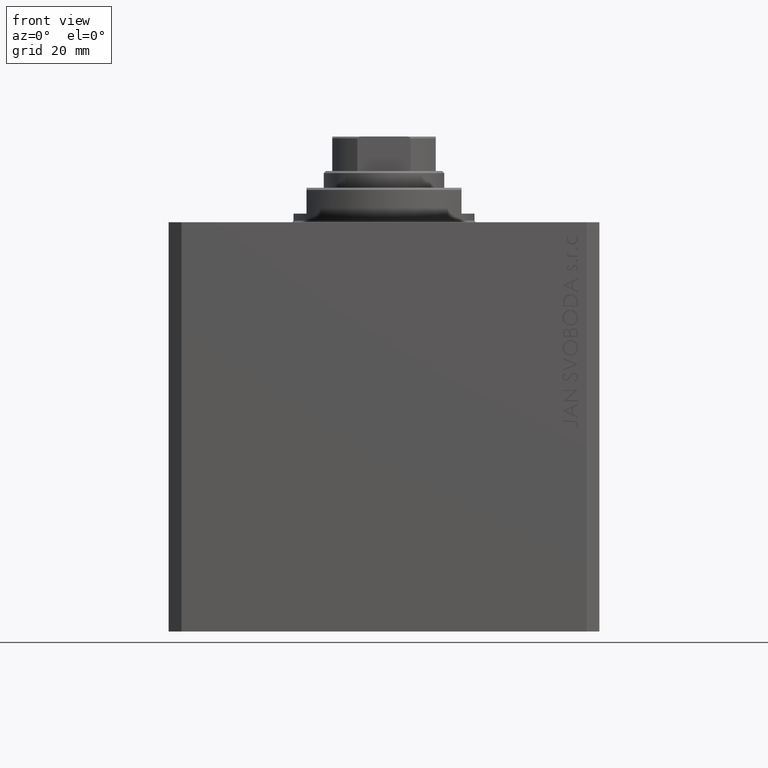
[diagram: clean part render]
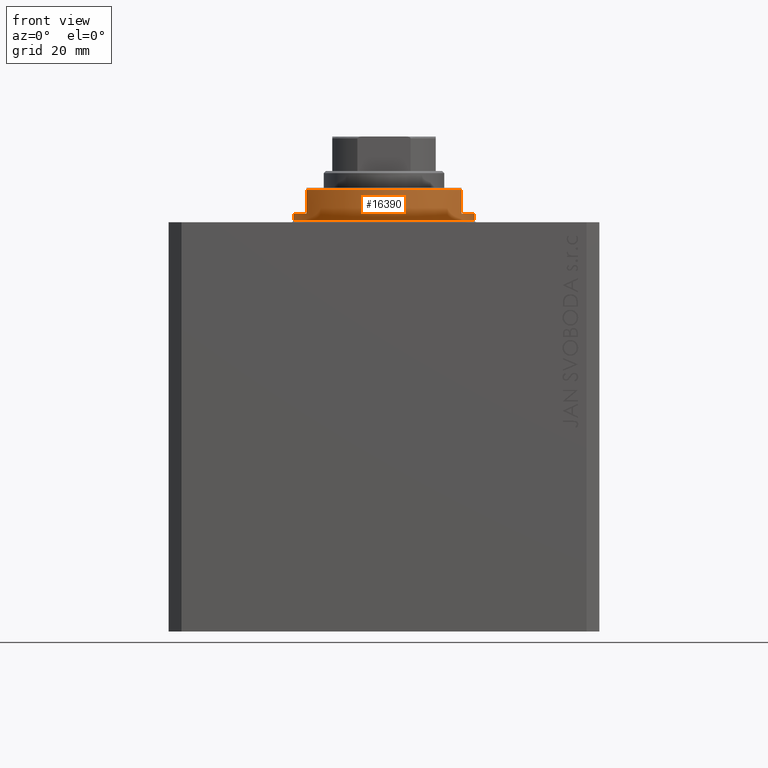
[diagram: same view with one face highlighted and labeled with its STEP entity id]
A machine part, front view. The second image highlights one B-rep face of the part: STEP entity #16390.
In plain terms, the highlighted cylindrical surface (partial cylindrical patch) has radius 21 mm, axis along (0, 0, -1).
Its self-contained STEP definition (entity closure, byte-faithful):
#803 = VERTEX_POINT ( 'NONE', #26366 ) ;
#868 = EDGE_CURVE ( 'NONE', #41643, #3907, #24606, .T. ) ;
#1024 = VECTOR ( 'NONE', #44494, 1000.000000000000000 ) ;
#1734 = EDGE_LOOP ( 'NONE', ( #13012, #38423, #38351, #5063, #5971, #6261, #37538, #16145 ) ) ;
#1928 = EDGE_CURVE ( 'NONE', #33654, #6029, #12374, .T. ) ;
#2455 = EDGE_CURVE ( 'NONE', #33654, #23959, #20351, .T. ) ;
#2497 = AXIS2_PLACEMENT_3D ( 'NONE', #33287, #19554, #12784 ) ;
#2980 = CARTESIAN_POINT ( 'NONE',  ( 21.00000000000000000, 0.000000000000000000, -8.000000000000000000 ) ) ;
#2996 = AXIS2_PLACEMENT_3D ( 'NONE', #8702, #40442, #12306 ) ;
#3907 = VERTEX_POINT ( 'NONE', #7295 ) ;
#5063 = ORIENTED_EDGE ( 'NONE', *, *, #868, .T. ) ;
#5971 = ORIENTED_EDGE ( 'NONE', *, *, #36116, .F. ) ;
#6022 = DIRECTION ( 'NONE',  ( 0.000000000000000000, 0.000000000000000000, 1.000000000000000000 ) ) ;
#6029 = VERTEX_POINT ( 'NONE', #21227 ) ;
#6261 = ORIENTED_EDGE ( 'NONE', *, *, #1928, .F. ) ;
#6709 = CARTESIAN_POINT ( 'NONE',  ( 21.00000000000000000, 0.000000000000000000, -0.5000000000000004441 ) ) ;
#7295 = CARTESIAN_POINT ( 'NONE',  ( 18.00000000000000000, -10.81665382639197048, -7.499999999999989342 ) ) ;
#8358 = CARTESIAN_POINT ( 'NONE',  ( 0.000000000000000000, 0.000000000000000000, -0.5000000000000004441 ) ) ;
#8702 = CARTESIAN_POINT ( 'NONE',  ( 0.000000000000000000, 0.000000000000000000, -2.000000000000000000 ) ) ;
#9169 = FACE_OUTER_BOUND ( 'NONE', #1734, .T. ) ;
#9397 = CARTESIAN_POINT ( 'NONE',  ( 0.000000000000000000, 0.000000000000000000, -7.499999999999989342 ) ) ;
#9437 = AXIS2_PLACEMENT_3D ( 'NONE', #8358, #11513, #43278 ) ;
#9620 = DIRECTION ( 'NONE',  ( -1.000000000000000000, 0.000000000000000000, 0.000000000000000000 ) ) ;
#10736 = AXIS2_PLACEMENT_3D ( 'NONE', #19288, #25877, #39540 ) ;
#11513 = DIRECTION ( 'NONE',  ( -0.000000000000000000, -0.000000000000000000, -1.000000000000000000 ) ) ;
#12306 = DIRECTION ( 'NONE',  ( -1.000000000000000000, 0.000000000000000000, 0.000000000000000000 ) ) ;
#12374 = CIRCLE ( 'NONE', #2996, 21.00000000000000000 ) ;
#12784 = DIRECTION ( 'NONE',  ( 1.000000000000000000, 0.000000000000000000, 0.000000000000000000 ) ) ;
#13012 = ORIENTED_EDGE ( 'NONE', *, *, #33029, .F. ) ;
#13187 = EDGE_CURVE ( 'NONE', #28996, #24801, #15059, .T. ) ;
#14540 = CARTESIAN_POINT ( 'NONE',  ( -18.00000000000000000, -10.81665382639197048, -2.000000000000000000 ) ) ;
#14799 = EDGE_CURVE ( 'NONE', #28996, #41643, #34784, .T. ) ;
#15059 = CIRCLE ( 'NONE', #10736, 21.00000000000000000 ) ;
#16009 = CARTESIAN_POINT ( 'NONE',  ( -18.00000000000000000, -10.81665382639197048, -7.499999999999990230 ) ) ;
#16145 = ORIENTED_EDGE ( 'NONE', *, *, #43890, .T. ) ;
#16390 = ADVANCED_FACE ( 'NONE', ( #9169 ), #39808, .T. ) ;
#16586 = VECTOR ( 'NONE', #39196, 1000.000000000000000 ) ;
#18844 = CIRCLE ( 'NONE', #9437, 21.00000000000000000 ) ;
#19288 = CARTESIAN_POINT ( 'NONE',  ( 0.000000000000000000, 0.000000000000000000, -2.000000000000000000 ) ) ;
#19554 = DIRECTION ( 'NONE',  ( -0.000000000000000000, -0.000000000000000000, 1.000000000000000000 ) ) ;
#20351 = LINE ( 'NONE', #2980, #25359 ) ;
#21227 = CARTESIAN_POINT ( 'NONE',  ( 18.00000000000000000, -10.81665382639197048, -2.000000000000000000 ) ) ;
#23208 = CARTESIAN_POINT ( 'NONE',  ( -21.00000000000000000, 2.571758278209441661E-15, -8.000000000000000000 ) ) ;
#23959 = VERTEX_POINT ( 'NONE', #6709 ) ;
#24606 = CIRCLE ( 'NONE', #33906, 21.00000000000000000 ) ;
#24801 = VERTEX_POINT ( 'NONE', #39384 ) ;
#25070 = LINE ( 'NONE', #31796, #16586 ) ;
#25359 = VECTOR ( 'NONE', #37906, 1000.000000000000000 ) ;
#25877 = DIRECTION ( 'NONE',  ( 0.000000000000000000, 0.000000000000000000, -1.000000000000000000 ) ) ;
#25959 = DIRECTION ( 'NONE',  ( -0.000000000000000000, -0.000000000000000000, 1.000000000000000000 ) ) ;
#26366 = CARTESIAN_POINT ( 'NONE',  ( -21.00000000000000000, 2.571758278209441661E-15, -0.5000000000000004441 ) ) ;
#27842 = CARTESIAN_POINT ( 'NONE',  ( -18.00000000000000000, -10.81665382639197048, -8.000000000000000000 ) ) ;
#28996 = VERTEX_POINT ( 'NONE', #14540 ) ;
#31796 = CARTESIAN_POINT ( 'NONE',  ( 18.00000000000000000, -10.81665382639197048, -8.000000000000000000 ) ) ;
#33029 = EDGE_CURVE ( 'NONE', #24801, #803, #33320, .T. ) ;
#33287 = CARTESIAN_POINT ( 'NONE',  ( 0.000000000000000000, 0.000000000000000000, -8.000000000000000000 ) ) ;
#33320 = LINE ( 'NONE', #23208, #43143 ) ;
#33654 = VERTEX_POINT ( 'NONE', #39200 ) ;
#33906 = AXIS2_PLACEMENT_3D ( 'NONE', #9397, #6022, #9620 ) ;
#34784 = LINE ( 'NONE', #27842, #1024 ) ;
#36116 = EDGE_CURVE ( 'NONE', #6029, #3907, #25070, .T. ) ;
#37538 = ORIENTED_EDGE ( 'NONE', *, *, #2455, .T. ) ;
#37906 = DIRECTION ( 'NONE',  ( -0.000000000000000000, -0.000000000000000000, 1.000000000000000000 ) ) ;
#38351 = ORIENTED_EDGE ( 'NONE', *, *, #14799, .T. ) ;
#38423 = ORIENTED_EDGE ( 'NONE', *, *, #13187, .F. ) ;
#39196 = DIRECTION ( 'NONE',  ( 0.000000000000000000, 0.000000000000000000, -1.000000000000000000 ) ) ;
#39200 = CARTESIAN_POINT ( 'NONE',  ( 21.00000000000000000, 0.000000000000000000, -2.000000000000000000 ) ) ;
#39384 = CARTESIAN_POINT ( 'NONE',  ( -21.00000000000000000, 2.571758278209441661E-15, -2.000000000000000000 ) ) ;
#39540 = DIRECTION ( 'NONE',  ( -1.000000000000000000, 0.000000000000000000, 0.000000000000000000 ) ) ;
#39808 = CYLINDRICAL_SURFACE ( 'NONE', #2497, 21.00000000000000000 ) ;
#40442 = DIRECTION ( 'NONE',  ( 0.000000000000000000, 0.000000000000000000, -1.000000000000000000 ) ) ;
#41643 = VERTEX_POINT ( 'NONE', #16009 ) ;
#43143 = VECTOR ( 'NONE', #25959, 1000.000000000000000 ) ;
#43278 = DIRECTION ( 'NONE',  ( 1.000000000000000000, 0.000000000000000000, 0.000000000000000000 ) ) ;
#43890 = EDGE_CURVE ( 'NONE', #23959, #803, #18844, .T. ) ;
#44494 = DIRECTION ( 'NONE',  ( 0.000000000000000000, 0.000000000000000000, -1.000000000000000000 ) ) ;